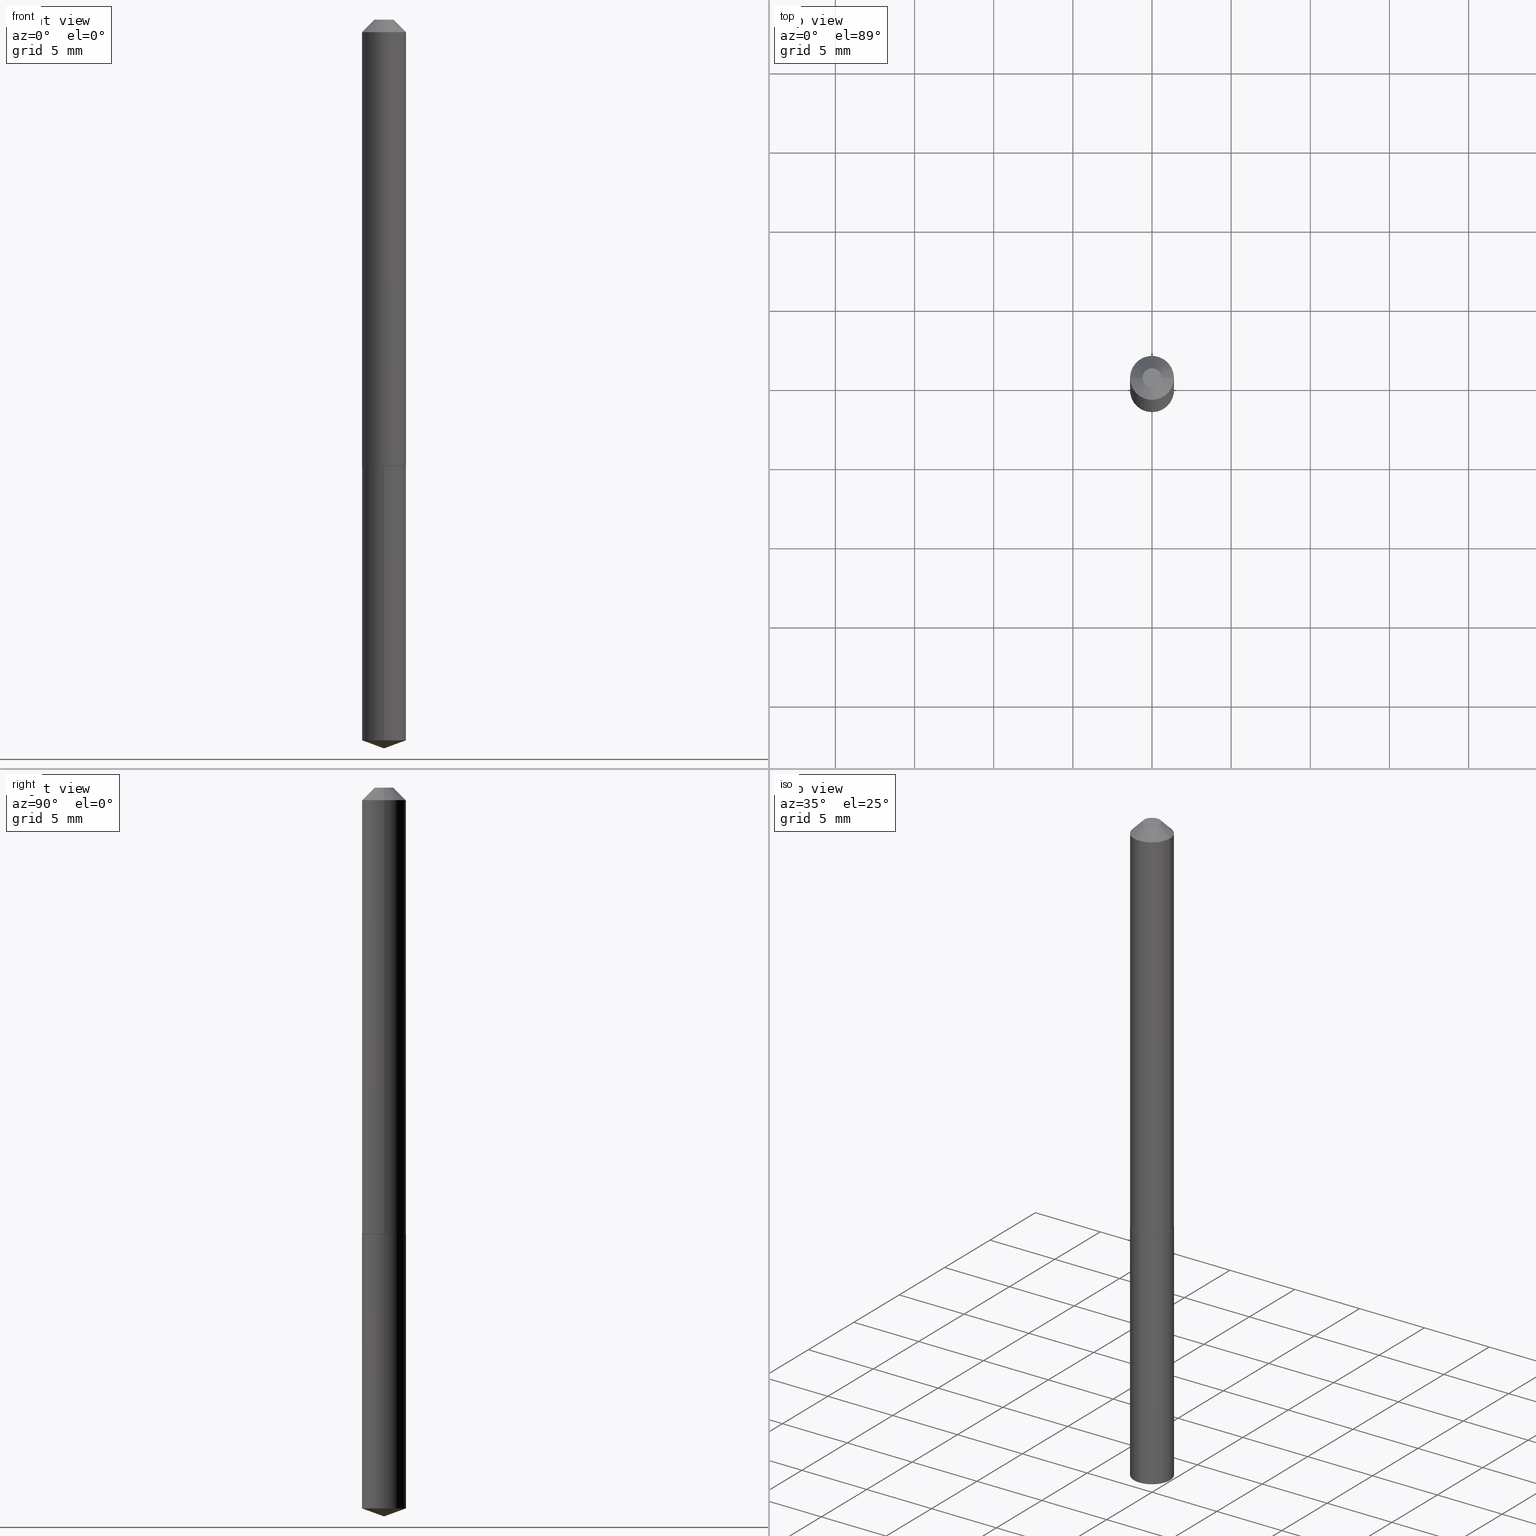
[diagram: canonical four-view strip — front | top / right | iso, engineering-drawing reading convention]
A machine part, canonical four-view strip (front | top / right | iso — engineering-drawing reading convention). The complete STEP part file that produces these views, byte-faithful:
ISO-10303-21;
HEADER;
FILE_DESCRIPTION (( 'STEP AP203' ),
    '1' );
FILE_NAME ('56107.STEP',
    '2024-04-22T20:14:20',
    ( '' ),
    ( '' ),
    'SwSTEP 2.0',
    'SolidWorks 2023',
    '' );
FILE_SCHEMA (( 'CONFIG_CONTROL_DESIGN' ));
ENDSEC;

DATA;
#1 = CLOSED_SHELL ( 'NONE', ( #71, #267, #113, #320, #117 ) ) ;
#3 = CARTESIAN_POINT ( 'NONE',  ( 2.713003093581790888E-29, -3.873449397312586735E-15, -1.109400000000000164 ) ) ;
#2 = CC_DESIGN_APPROVAL ( #110, ( #114 ) ) ;
#4 = ADVANCED_FACE ( 'NONE', ( #208 ), #100, .T. ) ;
#5 = DIRECTION ( 'NONE',  ( -0.7071067811863241959, 7.493145998869546367E-15, 0.7071067811867708386 ) ) ;
#6 = DIRECTION ( 'NONE',  ( -2.445468806185136597E-29, 3.491481338843145583E-15, 1.000000000000000000 ) ) ;
#7 = DATE_AND_TIME ( #281, #365 ) ;
#8 = PLANE ( 'NONE',  #119 ) ;
#9 = AXIS2_PLACEMENT_3D ( 'NONE', #3, #83, #357 ) ;
#10 = APPROVAL_PERSON_ORGANIZATION ( #307, #176, #368 ) ;
#11 = EDGE_CURVE ( 'NONE', #159, #144, #325, .T. ) ;
#12 = COORDINATED_UNIVERSAL_TIME_OFFSET ( 5, 0, .BEHIND. ) ;
#13 = PLANE ( 'NONE',  #108 ) ;
#14 = DIRECTION ( 'NONE',  ( -2.445468806185136597E-29, 3.491481338843145583E-15, 1.000000000000000000 ) ) ;
#15 = DATE_AND_TIME ( #160, #354 ) ;
#16 = CARTESIAN_POINT ( 'NONE',  ( -9.183059809027704400E-28, 1.311534802430125838E-13, 37.55757874015748143 ) ) ;
#17 = AXIS2_PLACEMENT_3D ( 'NONE', #331, #62, #303 ) ;
#18 = ORIENTED_EDGE ( 'NONE', *, *, #291, .T. ) ;
#19 = DATE_AND_TIME ( #339, #289 ) ;
#20 = DIRECTION ( 'NONE',  ( -2.445468806185136597E-29, 3.491481338843145583E-15, 1.000000000000000000 ) ) ;
#21 =( CONVERSION_BASED_UNIT ( 'INCH', #25 ) LENGTH_UNIT ( ) NAMED_UNIT ( #388 ) );
#22 = DIRECTION ( 'NONE',  ( -2.445468806185136597E-29, 3.491481338843145583E-15, 1.000000000000000000 ) ) ;
#23 = CIRCLE ( 'NONE', #150, 0.05469999999999999862 ) ;
#24 = EDGE_CURVE ( 'NONE', #344, #209, #187, .T. ) ;
#25 = LENGTH_MEASURE_WITH_UNIT ( LENGTH_MEASURE( 0.02539999999999999897 ), #106 );
#26 = EDGE_CURVE ( 'NONE', #159, #171, #270, .T. ) ;
#27 = EDGE_LOOP ( 'NONE', ( #115, #18, #389, #261 ) ) ;
#28 = AXIS2_PLACEMENT_3D ( 'NONE', #369, #377, #132 ) ;
#29 = VERTEX_POINT ( 'NONE', #300 ) ;
#30 = ORIENTED_EDGE ( 'NONE', *, *, #26, .T. ) ;
#31 = VERTEX_POINT ( 'NONE', #329 ) ;
#32 = ORIENTED_EDGE ( 'NONE', *, *, #273, .T. ) ;
#33 = ORIENTED_EDGE ( 'NONE', *, *, #34, .T. ) ;
#34 = EDGE_CURVE ( 'NONE', #39, #370, #23, .T. ) ;
#35 = DIRECTION ( 'NONE',  ( 2.445073400205194287E-29, -3.492047582711533107E-15, -1.000000000000000000 ) ) ;
#36 = CARTESIAN_POINT ( 'NONE',  ( 2.711780359178698087E-29, -3.871703656643164443E-15, -1.108899999999999997 ) ) ;
#37 = PERSON_AND_ORGANIZATION ( #124, #241 ) ;
#38 = CARTESIAN_POINT ( 'NONE',  ( 2.711780359178698087E-29, -3.871703656643164443E-15, -1.108899999999999997 ) ) ;
#39 = VERTEX_POINT ( 'NONE', #327 ) ;
#40 = PERSON_AND_ORGANIZATION ( #124, #241 ) ;
#41 = DIRECTION ( 'NONE',  ( -6.982962677686266711E-15, -1.000000000000000000, 3.475157955500704437E-15 ) ) ;
#42 = ORIENTED_EDGE ( 'NONE', *, *, #89, .F. ) ;
#43 = PERSON_AND_ORGANIZATION_ROLE ( 'classification_officer' ) ;
#44 = CC_DESIGN_PERSON_AND_ORGANIZATION_ASSIGNMENT ( #105, #211, ( #326 ) ) ;
#45 = FACE_OUTER_BOUND ( 'NONE', #88, .T. ) ;
#46 = CARTESIAN_POINT ( 'NONE',  ( 2.713003093581790888E-29, -3.873449397312585946E-15, -1.109400000000000164 ) ) ;
#47 = DESIGN_CONTEXT ( 'detailed design', #276, 'design' ) ;
#48 = CARTESIAN_POINT ( 'NONE',  ( 0.000000000000000000, 0.000000000000000000, 0.000000000000000000 ) ) ;
#49 = EDGE_CURVE ( 'NONE', #29, #203, #301, .T. ) ;
#50 = VECTOR ( 'NONE', #248, 39.37007874015748143 ) ;
#51 = CC_DESIGN_APPROVAL ( #252, ( #227 ) ) ;
#52 = DIRECTION ( 'NONE',  ( -6.561838499445207162E-15, -0.9396926207859079838, 0.3420201433256698231 ) ) ;
#53 = ORIENTED_EDGE ( 'NONE', *, *, #246, .F. ) ;
#54 = ORIENTED_EDGE ( 'NONE', *, *, #85, .T. ) ;
#55 = CYLINDRICAL_SURFACE ( 'NONE', #200, 0.05469999999999999862 ) ;
#56 = AXIS2_PLACEMENT_3D ( 'NONE', #161, #282, #250 ) ;
#57 = DIRECTION ( 'NONE',  ( -6.982962677686265922E-15, -1.000000000000000000, 4.994237648380736877E-15 ) ) ;
#58 = CARTESIAN_POINT ( 'NONE',  ( 2.713003093581790888E-29, -3.873449397312585946E-15, -1.109400000000000164 ) ) ;
#59 = EDGE_CURVE ( 'NONE', #171, #214, #243, .T. ) ;
#60 = EDGE_LOOP ( 'NONE', ( #266, #322, #309, #194 ) ) ;
#61 = CIRCLE ( 'NONE', #28, 0.05420000000000026880 ) ;
#62 = DIRECTION ( 'NONE',  ( 2.445468806185136597E-29, -3.491481338843145583E-15, -1.000000000000000000 ) ) ;
#63 = FACE_OUTER_BOUND ( 'NONE', #116, .T. ) ;
#64 = APPROVAL_DATE_TIME ( #19, #110 ) ;
#65 = CARTESIAN_POINT ( 'NONE',  ( -1.167985862904637270E-47, 1.667574263899819573E-33, 4.776122516674677910E-19 ) ) ;
#66 = DATE_TIME_ROLE ( 'classification_date' ) ;
#67 = FACE_OUTER_BOUND ( 'NONE', #143, .T. ) ;
#68 = AXIS2_PLACEMENT_3D ( 'NONE', #48, #318, #383 ) ;
#69 = ORIENTED_EDGE ( 'NONE', *, *, #263, .F. ) ;
#70 = LINE ( 'NONE', #191, #154 ) ;
#71 = ADVANCED_FACE ( 'NONE', ( #174 ), #55, .T. ) ;
#72 = CARTESIAN_POINT ( 'NONE',  ( -0.05470000000000000556, -1.601739347780230402E-15, -0.03125000000000020817 ) ) ;
#73 = ORIENTED_EDGE ( 'NONE', *, *, #59, .T. ) ;
#74 = DIRECTION ( 'NONE',  ( -2.445073400205194848E-29, 3.492047582711533107E-15, 1.000000000000000000 ) ) ;
#75 = VECTOR ( 'NONE', #52, 39.37007874015748143 ) ;
#76 = ADVANCED_FACE ( 'NONE', ( #87 ), #380, .T. ) ;
#77 =( NAMED_UNIT ( * ) PLANE_ANGLE_UNIT ( ) SI_UNIT ( $, .RADIAN. ) );
#78 = DIRECTION ( 'NONE',  ( 6.676917655467972073E-15, 0.9396926207859103153, 0.3420201433256632173 ) ) ;
#79 = DIRECTION ( 'NONE',  ( 1.000000000000000000, -6.982962677686266711E-15, 4.876421767504995250E-29 ) ) ;
#80 = CC_DESIGN_PERSON_AND_ORGANIZATION_ASSIGNMENT ( #93, #247, ( #227 ) ) ;
#81 = AXIS2_PLACEMENT_3D ( 'NONE', #367, #153, #255 ) ;
#82 = DIRECTION ( 'NONE',  ( -2.445468806185136877E-29, 3.491481338843145188E-15, 1.000000000000000000 ) ) ;
#83 = DIRECTION ( 'NONE',  ( -2.445468806185136597E-29, 3.491481338843145583E-15, 1.000000000000000000 ) ) ;
#84 = VECTOR ( 'NONE', #256, 39.37007874015748143 ) ;
#85 = EDGE_CURVE ( 'NONE', #209, #214, #264, .T. ) ;
#86 = ORIENTED_EDGE ( 'NONE', *, *, #156, .F. ) ;
#87 = FACE_OUTER_BOUND ( 'NONE', #27, .T. ) ;
#88 = EDGE_LOOP ( 'NONE', ( #173, #324, #148 ) ) ;
#89 = EDGE_CURVE ( 'NONE', #31, #142, #275, .T. ) ;
#90 = AXIS2_PLACEMENT_3D ( 'NONE', #304, #335, #372 ) ;
#92 = DIRECTION ( 'NONE',  ( -0.7071067811865452413, 2.468850131082233000E-15, -0.7071067811865497932 ) ) ;
#91 = LOCAL_TIME ( 16, 14, 20.00000000000000000, #12 ) ;
#93 = PERSON_AND_ORGANIZATION ( #124, #241 ) ;
#94 = DIRECTION ( 'NONE',  ( 6.982962677686265922E-15, 1.000000000000000000, -3.492047582711533107E-15 ) ) ;
#95 = APPROVAL_DATE_TIME ( #131, #176 ) ;
#96 = CARTESIAN_POINT ( 'NONE',  ( 3.886668764608184751E-16, 0.05469999999999372586, -1.792590828185639307 ) ) ;
#97 = EDGE_LOOP ( 'NONE', ( #290, #265, #384, #283 ) ) ;
#98 = APPLICATION_PROTOCOL_DEFINITION ( 'international standard', 'config_control_design', 1994, #292 ) ;
#99 = CARTESIAN_POINT ( 'NONE',  ( 2.713003093581790888E-29, -3.873449397312585946E-15, -1.109400000000000164 ) ) ;
#100 = CONICAL_SURFACE ( 'NONE', #139, 0.05470000000000000556, 0.7853981633974450594 ) ;
#101 = EDGE_CURVE ( 'NONE', #370, #39, #257, .T. ) ;
#102 = CARTESIAN_POINT ( 'NONE',  ( 0.000000000000000000, 0.000000000000000000, 0.000000000000000000 ) ) ;
#103 = CARTESIAN_POINT ( 'NONE',  ( 0.05470000000000000556, -4.910768503082878866E-16, -0.03125000000000020817 ) ) ;
#104 = ORIENTED_EDGE ( 'NONE', *, *, #179, .T. ) ;
#105 = PERSON_AND_ORGANIZATION ( #124, #241 ) ;
#106 =( LENGTH_UNIT ( ) NAMED_UNIT ( * ) SI_UNIT ( $, .METRE. ) );
#107 = DIRECTION ( 'NONE',  ( -6.982962677686266711E-15, -1.000000000000000000, 3.475157955500704437E-15 ) ) ;
#108 = AXIS2_PLACEMENT_3D ( 'NONE', #65, #253, #185 ) ;
#109 = FACE_OUTER_BOUND ( 'NONE', #297, .T. ) ;
#110 = APPROVAL ( #215, 'UNSPECIFIED' ) ;
#111 = DIRECTION ( 'NONE',  ( -2.445073400205194848E-29, 3.492047582711533107E-15, 1.000000000000000000 ) ) ;
#112 = ORIENTED_EDGE ( 'NONE', *, *, #34, .F. ) ;
#113 = ADVANCED_FACE ( 'NONE', ( #67 ), #288, .T. ) ;
#114 = SECURITY_CLASSIFICATION ( '', '', #334 ) ;
#115 = ORIENTED_EDGE ( 'NONE', *, *, #24, .F. ) ;
#116 = EDGE_LOOP ( 'NONE', ( #201, #237, #379, #387 ) ) ;
#117 = ADVANCED_FACE ( 'NONE', ( #279 ), #8, .F. ) ;
#118 = CARTESIAN_POINT ( 'NONE',  ( -0.05470000000000013046, -3.483036780182388665E-15, -1.108899999999999997 ) ) ;
#119 = AXIS2_PLACEMENT_3D ( 'NONE', #99, #35, #94 ) ;
#120 = APPROVAL_PERSON_ORGANIZATION ( #278, #252, #249 ) ;
#121 = DIRECTION ( 'NONE',  ( -2.445073400205194848E-29, 3.492047582711533107E-15, 1.000000000000000000 ) ) ;
#122 = ORIENTED_EDGE ( 'NONE', *, *, #291, .F. ) ;
#123 = LINE ( 'NONE', #363, #332 ) ;
#124 = PERSON ( 'UNSPECIFIED', 'UNSPECIFIED', 'UNSPECIFIED', ('UNSPECIFIED'), ('UNSPECIFIED'), ('UNSPECIFIED') ) ;
#125 = APPROVAL_DATE_TIME ( #7, #252 ) ;
#126 = APPROVAL_PERSON_ORGANIZATION ( #157, #110, #133 ) ;
#127 = CARTESIAN_POINT ( 'NONE',  ( 3.886668764608018597E-16, 0.05469999999999612672, -1.109400000000000164 ) ) ;
#128 = CC_DESIGN_PERSON_AND_ORGANIZATION_ASSIGNMENT ( #366, #376, ( #326 ) ) ;
#129 = DATE_AND_TIME ( #251, #91 ) ;
#130 = CARTESIAN_POINT ( 'NONE',  ( 4.431695537871916310E-29, -6.329336243664654422E-15, -1.812500000000000222 ) ) ;
#131 = DATE_AND_TIME ( #371, #306 ) ;
#132 = DIRECTION ( 'NONE',  ( 1.000000000000000000, -6.982962677686269866E-15, 0.000000000000000000 ) ) ;
#133 = APPROVAL_ROLE ( '' ) ;
#134 = DIRECTION ( 'NONE',  ( -2.445073400205194848E-29, 3.492047582711533107E-15, 1.000000000000000000 ) ) ;
#135 = AXIS2_PLACEMENT_3D ( 'NONE', #102, #336, #162 ) ;
#136 = APPROVAL_STATUS ( 'not_yet_approved' ) ;
#137 = EDGE_CURVE ( 'NONE', #171, #31, #216, .T. ) ;
#138 = CARTESIAN_POINT ( 'NONE',  ( 2.711780359178698087E-29, -3.871703656643164443E-15, -1.108899999999999997 ) ) ;
#139 = AXIS2_PLACEMENT_3D ( 'NONE', #239, #149, #175 ) ;
#140 = UNCERTAINTY_MEASURE_WITH_UNIT (LENGTH_MEASURE( 1.000000000000000082E-05 ), #21, 'distance_accuracy_value', 'NONE');
#141 = CARTESIAN_POINT ( 'NONE',  ( 0.05470000000000000556, -4.843780323169518806E-16, -0.03125000000000020817 ) ) ;
#142 = VERTEX_POINT ( 'NONE', #103 ) ;
#143 = EDGE_LOOP ( 'NONE', ( #236, #32, #86 ) ) ;
#144 = VERTEX_POINT ( 'NONE', #183 ) ;
#145 = AXIS2_PLACEMENT_3D ( 'NONE', #272, #6, #244 ) ;
#146 = ORIENTED_EDGE ( 'NONE', *, *, #199, .T. ) ;
#147 = EDGE_CURVE ( 'NONE', #203, #370, #343, .T. ) ;
#148 = ORIENTED_EDGE ( 'NONE', *, *, #49, .F. ) ;
#149 = DIRECTION ( 'NONE',  ( 2.445468806185136597E-29, -3.491481338843145583E-15, -1.000000000000000000 ) ) ;
#150 = AXIS2_PLACEMENT_3D ( 'NONE', #58, #242, #296 ) ;
#151 = DIRECTION ( 'NONE',  ( 1.000000000000000000, -6.982962677686266711E-15, 4.876421767504995250E-29 ) ) ;
#152 = CYLINDRICAL_SURFACE ( 'NONE', #145, 0.05470000000000006801 ) ;
#153 = DIRECTION ( 'NONE',  ( -2.445073400205194848E-29, 3.492047582711533107E-15, 1.000000000000000000 ) ) ;
#154 = VECTOR ( 'NONE', #311, 39.37007874015748143 ) ;
#155 = DIRECTION ( 'NONE',  ( 1.000000000000000000, -6.982962677686269866E-15, 0.000000000000000000 ) ) ;
#156 = EDGE_CURVE ( 'NONE', #203, #29, #373, .T. ) ;
#157 = PERSON_AND_ORGANIZATION ( #124, #241 ) ;
#158 = CARTESIAN_POINT ( 'NONE',  ( 2.713003093581790888E-29, -3.873449397312586735E-15, -1.109400000000000164 ) ) ;
#159 = VERTEX_POINT ( 'NONE', #280 ) ;
#160 = CALENDAR_DATE ( 2024, 22, 4 ) ;
#161 = CARTESIAN_POINT ( 'NONE',  ( 2.711780359178698087E-29, -3.871703656643164443E-15, -1.108899999999999997 ) ) ;
#162 = DIRECTION ( 'NONE',  ( 1.000000000000000000, 0.000000000000000000, 0.000000000000000000 ) ) ;
#163 = ADVANCED_FACE ( 'NONE', ( #212 ), #13, .F. ) ;
#164 = FACE_OUTER_BOUND ( 'NONE', #60, .T. ) ;
#165 = CONICAL_SURFACE ( 'NONE', #230, 0.05470000000000013046, 0.7853981633971325316 ) ;
#166 = PERSON_AND_ORGANIZATION_ROLE ( 'design_owner' ) ;
#167 = CYLINDRICAL_SURFACE ( 'NONE', #68, 0.05470000000000006801 ) ;
#168 = DIRECTION ( 'NONE',  ( 1.000000000000000000, -6.982962677686269866E-15, 0.000000000000000000 ) ) ;
#169 = CIRCLE ( 'NONE', #358, 0.02344999999999999862 ) ;
#170 =( NAMED_UNIT ( * ) SI_UNIT ( $, .STERADIAN. ) SOLID_ANGLE_UNIT ( ) );
#171 = VERTEX_POINT ( 'NONE', #305 ) ;
#172 = ADVANCED_FACE ( 'NONE', ( #63 ), #178, .T. ) ;
#173 = ORIENTED_EDGE ( 'NONE', *, *, #273, .F. ) ;
#174 = FACE_OUTER_BOUND ( 'NONE', #192, .T. ) ;
#175 = DIRECTION ( 'NONE',  ( -1.000000000000000000, 6.982962677686266711E-15, 0.000000000000000000 ) ) ;
#176 = APPROVAL ( #221, 'UNSPECIFIED' ) ;
#177 = ORIENTED_EDGE ( 'NONE', *, *, #179, .F. ) ;
#178 = CONICAL_SURFACE ( 'NONE', #56, 0.05470000000000013046, 0.7853981633971325316 ) ;
#179 = EDGE_CURVE ( 'NONE', #144, #159, #61, .T. ) ;
#180 = CC_DESIGN_SECURITY_CLASSIFICATION ( #114, ( #326 ) ) ;
#181 = CARTESIAN_POINT ( 'NONE',  ( 2.713003093581790888E-29, -3.873449397312585946E-15, -1.109400000000000164 ) ) ;
#182 = CC_DESIGN_DATE_AND_TIME_ASSIGNMENT ( #15, #66, ( #114 ) ) ;
#183 = CARTESIAN_POINT ( 'NONE',  ( 0.05420000000000026880, -4.251925974443183697E-15, -1.109400000000000164 ) ) ;
#184 = SHAPE_DEFINITION_REPRESENTATION ( #390, #274 ) ;
#185 = DIRECTION ( 'NONE',  ( -1.000000000000000000, 6.982962677686265922E-15, -4.876176775795935793E-29 ) ) ;
#186 = DATE_TIME_ROLE ( 'creation_date' ) ;
#187 = CIRCLE ( 'NONE', #254, 0.02344999999999999862 ) ;
#188 = VECTOR ( 'NONE', #78, 39.37007874015748854 ) ;
#189 = DIRECTION ( 'NONE',  ( -2.445468806185136597E-29, 3.491481338843145583E-15, 1.000000000000000000 ) ) ;
#190 = ORIENTED_EDGE ( 'NONE', *, *, #345, .T. ) ;
#191 = CARTESIAN_POINT ( 'NONE',  ( 0.05470000000000013046, -4.253671715112603623E-15, -1.108899999999999997 ) ) ;
#192 = EDGE_LOOP ( 'NONE', ( #323, #223, #112, #53 ) ) ;
#193 = DIRECTION ( 'NONE',  ( -2.438088387897960049E-29, 3.491481338843145188E-15, 1.000000000000000000 ) ) ;
#194 = ORIENTED_EDGE ( 'NONE', *, *, #298, .F. ) ;
#195 = CONICAL_SURFACE ( 'NONE', #245, 108.1684023407339481, 1.221730476396033049 ) ;
#196 = CARTESIAN_POINT ( 'NONE',  ( 7.642090019328602662E-31, -1.091087918388490267E-16, -0.03125000000000020817 ) ) ;
#197 = CARTESIAN_POINT ( 'NONE',  ( 4.432580557780543082E-29, -6.328079861769475848E-15, -1.812500000000000222 ) ) ;
#198 = DIRECTION ( 'NONE',  ( -6.982962677686265922E-15, -1.000000000000000000, 2.497118824190368439E-15 ) ) ;
#199 = EDGE_CURVE ( 'NONE', #31, #171, #316, .T. ) ;
#201 = ORIENTED_EDGE ( 'NONE', *, *, #26, .F. ) ;
#200 = AXIS2_PLACEMENT_3D ( 'NONE', #181, #121, #361 ) ;
#202 = CC_DESIGN_PERSON_AND_ORGANIZATION_ASSIGNMENT ( #37, #43, ( #114 ) ) ;
#203 = VERTEX_POINT ( 'NONE', #96 ) ;
#204 = DIRECTION ( 'NONE',  ( -2.445468806185136597E-29, 3.491481338843145583E-15, 1.000000000000000000 ) ) ;
#205 = AXIS2_PLACEMENT_3D ( 'NONE', #158, #193, #218 ) ;
#206 =( GEOMETRIC_REPRESENTATION_CONTEXT ( 3 ) GLOBAL_UNCERTAINTY_ASSIGNED_CONTEXT ( ( #140 ) ) GLOBAL_UNIT_ASSIGNED_CONTEXT ( ( #21, #77, #170 ) ) REPRESENTATION_CONTEXT ( 'NONE', 'WORKASPACE' ) );
#207 = VERTEX_POINT ( 'NONE', #130 ) ;
#208 = FACE_OUTER_BOUND ( 'NONE', #355, .T. ) ;
#209 = VERTEX_POINT ( 'NONE', #210 ) ;
#210 = CARTESIAN_POINT ( 'NONE',  ( -0.02344999999999999862, 2.183048707111663922E-16, 9.552245033335997570E-19 ) ) ;
#211 = PERSON_AND_ORGANIZATION_ROLE ( 'design_supplier' ) ;
#212 = FACE_OUTER_BOUND ( 'NONE', #352, .T. ) ;
#213 = FACE_OUTER_BOUND ( 'NONE', #238, .T. ) ;
#214 = VERTEX_POINT ( 'NONE', #72 ) ;
#215 = APPROVAL_STATUS ( 'not_yet_approved' ) ;
#216 = CIRCLE ( 'NONE', #269, 0.05470000000000013046 ) ;
#217 = CC_DESIGN_APPROVAL ( #176, ( #326 ) ) ;
#218 = DIRECTION ( 'NONE',  ( 1.000000000000000000, -6.982962677686265922E-15, 4.876176775795935793E-29 ) ) ;
#219 = ADVANCED_FACE ( 'NONE', ( #213 ), #308, .F. ) ;
#220 = EDGE_CURVE ( 'NONE', #144, #31, #70, .T. ) ;
#221 = APPROVAL_STATUS ( 'not_yet_approved' ) ;
#222 = DIRECTION ( 'NONE',  ( 1.000000000000000000, -6.982962677686269866E-15, 0.000000000000000000 ) ) ;
#223 = ORIENTED_EDGE ( 'NONE', *, *, #147, .T. ) ;
#224 = COORDINATED_UNIVERSAL_TIME_OFFSET ( 5, 0, .BEHIND. ) ;
#225 = LINE ( 'NONE', #141, #84 ) ;
#226 = MANIFOLD_SOLID_BREP ( 'Body-Move/Copy2[1]', #1 ) ;
#227 = PRODUCT_DEFINITION ( 'UNKNOWN', '', #326, #47 ) ;
#228 = AXIS2_PLACEMENT_3D ( 'NONE', #196, #232, #286 ) ;
#229 = FACE_OUTER_BOUND ( 'NONE', #97, .T. ) ;
#230 = AXIS2_PLACEMENT_3D ( 'NONE', #138, #319, #168 ) ;
#231 = ADVANCED_FACE ( 'NONE', ( #314 ), #152, .T. ) ;
#232 = DIRECTION ( 'NONE',  ( -2.445468806185136597E-29, 3.491481338843145583E-15, 1.000000000000000000 ) ) ;
#233 = CARTESIAN_POINT ( 'NONE',  ( 0.02344999999999999862, -3.226283551823471496E-16, 9.552245033366354078E-19 ) ) ;
#234 = ORIENTED_EDGE ( 'NONE', *, *, #11, .F. ) ;
#236 = ORIENTED_EDGE ( 'NONE', *, *, #362, .F. ) ;
#235 = AXIS2_PLACEMENT_3D ( 'NONE', #16, #340, #41 ) ;
#237 = ORIENTED_EDGE ( 'NONE', *, *, #11, .T. ) ;
#238 = EDGE_LOOP ( 'NONE', ( #177, #234 ) ) ;
#239 = CARTESIAN_POINT ( 'NONE',  ( 7.642090019328602662E-31, -1.091087918388490267E-16, -0.03125000000000020817 ) ) ;
#240 = VECTOR ( 'NONE', #82, 39.37007874015748143 ) ;
#241 = ORGANIZATION ( 'UNSPECIFIED', 'UNSPECIFIED', '' ) ;
#242 = DIRECTION ( 'NONE',  ( -2.445073400205194848E-29, 3.492047582711533107E-15, 1.000000000000000000 ) ) ;
#243 = LINE ( 'NONE', #299, #240 ) ;
#244 = DIRECTION ( 'NONE',  ( 1.000000000000000000, -6.982962677686266711E-15, 4.876176775795936353E-29 ) ) ;
#245 = AXIS2_PLACEMENT_3D ( 'NONE', #317, #74, #107 ) ;
#246 = EDGE_CURVE ( 'NONE', #29, #39, #123, .T. ) ;
#247 = PERSON_AND_ORGANIZATION_ROLE ( 'creator' ) ;
#248 = DIRECTION ( 'NONE',  ( -2.445468806185136877E-29, 3.491481338843145188E-15, 1.000000000000000000 ) ) ;
#249 = APPROVAL_ROLE ( '' ) ;
#250 = DIRECTION ( 'NONE',  ( 1.000000000000000000, -6.982962677686269866E-15, 0.000000000000000000 ) ) ;
#251 = CALENDAR_DATE ( 2024, 22, 4 ) ;
#252 = APPROVAL ( #136, 'UNSPECIFIED' ) ;
#253 = DIRECTION ( 'NONE',  ( 2.438088387897960049E-29, -3.491481338843145188E-15, -1.000000000000000000 ) ) ;
#254 = AXIS2_PLACEMENT_3D ( 'NONE', #360, #204, #151 ) ;
#255 = DIRECTION ( 'NONE',  ( -6.982962677686265922E-15, -1.000000000000000000, 4.994237648380736877E-15 ) ) ;
#256 = DIRECTION ( 'NONE',  ( 0.7071067811865452413, -7.319954787623248157E-15, -0.7071067811865497932 ) ) ;
#257 = CIRCLE ( 'NONE', #90, 0.05469999999999999862 ) ;
#258 = CARTESIAN_POINT ( 'NONE',  ( 7.642090019328602662E-31, -1.091087918388490267E-16, -0.03125000000000020817 ) ) ;
#259 = AXIS2_PLACEMENT_3D ( 'NONE', #46, #111, #198 ) ;
#260 = CARTESIAN_POINT ( 'NONE',  ( 3.886668764608186723E-16, 0.05469999999999611284, -1.109400000000000164 ) ) ;
#261 = ORIENTED_EDGE ( 'NONE', *, *, #85, .F. ) ;
#262 = CC_DESIGN_DATE_AND_TIME_ASSIGNMENT ( #129, #186, ( #227 ) ) ;
#263 = EDGE_CURVE ( 'NONE', #142, #214, #364, .T. ) ;
#264 = LINE ( 'NONE', #386, #353 ) ;
#265 = ORIENTED_EDGE ( 'NONE', *, *, #156, .T. ) ;
#266 = ORIENTED_EDGE ( 'NONE', *, *, #59, .F. ) ;
#267 = ADVANCED_FACE ( 'NONE', ( #45 ), #195, .T. ) ;
#268 = CARTESIAN_POINT ( 'NONE',  ( 4.383454814842654207E-29, -6.259184277408935963E-15, -1.792590828185639085 ) ) ;
#269 = AXIS2_PLACEMENT_3D ( 'NONE', #38, #189, #222 ) ;
#270 = LINE ( 'NONE', #118, #338 ) ;
#271 = CC_DESIGN_PERSON_AND_ORGANIZATION_ASSIGNMENT ( #40, #166, ( #328 ) ) ;
#272 = CARTESIAN_POINT ( 'NONE',  ( 0.000000000000000000, 0.000000000000000000, 0.000000000000000000 ) ) ;
#273 = EDGE_CURVE ( 'NONE', #207, #29, #350, .T. ) ;
#274 = ADVANCED_BREP_SHAPE_REPRESENTATION ( '56107', ( #226, #347, #135 ), #206 ) ;
#275 = LINE ( 'NONE', #337, #50 ) ;
#276 = APPLICATION_CONTEXT ( 'configuration controlled 3d designs of mechanical parts and assemblies' ) ;
#277 = VECTOR ( 'NONE', #134, 39.37007874015748143 ) ;
#278 = PERSON_AND_ORGANIZATION ( #124, #241 ) ;
#279 = FACE_OUTER_BOUND ( 'NONE', #330, .T. ) ;
#280 = CARTESIAN_POINT ( 'NONE',  ( -0.05420000000000026880, -3.485686007356499471E-15, -1.109400000000000164 ) ) ;
#281 = CALENDAR_DATE ( 2024, 22, 4 ) ;
#282 = DIRECTION ( 'NONE',  ( -2.445468806185136597E-29, 3.491481338843145583E-15, 1.000000000000000000 ) ) ;
#283 = ORIENTED_EDGE ( 'NONE', *, *, #101, .F. ) ;
#284 = COORDINATED_UNIVERSAL_TIME_OFFSET ( 5, 0, .BEHIND. ) ;
#285 = AXIS2_PLACEMENT_3D ( 'NONE', #36, #14, #155 ) ;
#286 = DIRECTION ( 'NONE',  ( 1.000000000000000000, -6.982962677686266711E-15, 0.000000000000000000 ) ) ;
#287 = CYLINDRICAL_SURFACE ( 'NONE', #259, 0.05469999999999999862 ) ;
#288 = CONICAL_SURFACE ( 'NONE', #235, 108.1684023407339481, 1.221730476396033049 ) ;
#289 = LOCAL_TIME ( 16, 14, 20.00000000000000000, #342 ) ;
#290 = ORIENTED_EDGE ( 'NONE', *, *, #147, .F. ) ;
#291 = EDGE_CURVE ( 'NONE', #344, #142, #225, .T. ) ;
#292 = APPLICATION_CONTEXT ( 'configuration controlled 3d designs of mechanical parts and assemblies' ) ;
#293 = ORIENTED_EDGE ( 'NONE', *, *, #220, .F. ) ;
#294 = ORIENTED_EDGE ( 'NONE', *, *, #345, .F. ) ;
#295 = CIRCLE ( 'NONE', #375, 0.05470000000000000556 ) ;
#296 = DIRECTION ( 'NONE',  ( -6.982962677686265922E-15, -1.000000000000000000, 2.497118824190368439E-15 ) ) ;
#297 = EDGE_LOOP ( 'NONE', ( #104, #30, #385, #293 ) ) ;
#298 = EDGE_CURVE ( 'NONE', #214, #142, #295, .T. ) ;
#299 = CARTESIAN_POINT ( 'NONE',  ( -0.05470000000000006801, 3.886668764607752849E-16, -2.690657494369436511E-30 ) ) ;
#300 = CARTESIAN_POINT ( 'NONE',  ( -3.819680584693948069E-16, -0.05470000000000622975, -1.792590828185638641 ) ) ;
#301 = CIRCLE ( 'NONE', #321, 0.05469999999999999862 ) ;
#302 = PRODUCT_RELATED_PRODUCT_CATEGORY ( 'detail', '', ( #328 ) ) ;
#303 = DIRECTION ( 'NONE',  ( -1.000000000000000000, 6.982962677686266711E-15, 0.000000000000000000 ) ) ;
#304 = CARTESIAN_POINT ( 'NONE',  ( 2.713003093581790888E-29, -3.873449397312585946E-15, -1.109400000000000164 ) ) ;
#305 = CARTESIAN_POINT ( 'NONE',  ( -0.05470000000000013046, -3.483036780182388665E-15, -1.108899999999999997 ) ) ;
#306 = LOCAL_TIME ( 16, 14, 20.00000000000000000, #224 ) ;
#307 = PERSON_AND_ORGANIZATION ( #124, #241 ) ;
#308 = PLANE ( 'NONE',  #205 ) ;
#309 = ORIENTED_EDGE ( 'NONE', *, *, #89, .T. ) ;
#310 = COORDINATED_UNIVERSAL_TIME_OFFSET ( 5, 0, .BEHIND. ) ;
#311 = DIRECTION ( 'NONE',  ( 0.7071067811863241959, -2.468850131079917299E-15, 0.7071067811867708386 ) ) ;
#312 = EDGE_LOOP ( 'NONE', ( #146, #73, #69, #42 ) ) ;
#313 = MECHANICAL_CONTEXT ( 'NONE', #292, 'mechanical' ) ;
#314 = FACE_OUTER_BOUND ( 'NONE', #312, .T. ) ;
#315 = APPLICATION_PROTOCOL_DEFINITION ( 'international standard', 'config_control_design', 1994, #276 ) ;
#316 = CIRCLE ( 'NONE', #285, 0.05470000000000013046 ) ;
#317 = CARTESIAN_POINT ( 'NONE',  ( -9.183059809027704400E-28, 1.311534802430125838E-13, 37.55757874015748143 ) ) ;
#318 = DIRECTION ( 'NONE',  ( -2.445468806185136597E-29, 3.491481338843145583E-15, 1.000000000000000000 ) ) ;
#319 = DIRECTION ( 'NONE',  ( -2.445468806185136597E-29, 3.491481338843145583E-15, 1.000000000000000000 ) ) ;
#320 = ADVANCED_FACE ( 'NONE', ( #229 ), #287, .T. ) ;
#321 = AXIS2_PLACEMENT_3D ( 'NONE', #268, #356, #57 ) ;
#322 = ORIENTED_EDGE ( 'NONE', *, *, #137, .T. ) ;
#323 = ORIENTED_EDGE ( 'NONE', *, *, #49, .T. ) ;
#324 = ORIENTED_EDGE ( 'NONE', *, *, #362, .T. ) ;
#325 = CIRCLE ( 'NONE', #9, 0.05420000000000026880 ) ;
#327 = CARTESIAN_POINT ( 'NONE',  ( -3.819680584694116195E-16, -0.05470000000000387747, -1.109399999999999942 ) ) ;
#326 = PRODUCT_DEFINITION_FORMATION_WITH_SPECIFIED_SOURCE ( 'ANY', '', #328, .NOT_KNOWN. ) ;
#328 = PRODUCT ( '56107', '56107', '', ( #313 ) ) ;
#329 = CARTESIAN_POINT ( 'NONE',  ( 0.05470000000000013046, -4.253671715112603623E-15, -1.108899999999999997 ) ) ;
#330 = EDGE_LOOP ( 'NONE', ( #33, #341 ) ) ;
#331 = CARTESIAN_POINT ( 'NONE',  ( 7.642090019328602662E-31, -1.091087918388490267E-16, -0.03125000000000020817 ) ) ;
#332 = VECTOR ( 'NONE', #333, 39.37007874015748143 ) ;
#333 = DIRECTION ( 'NONE',  ( -2.445073400205194848E-29, 3.492047582711533107E-15, 1.000000000000000000 ) ) ;
#334 = SECURITY_CLASSIFICATION_LEVEL ( 'unclassified' ) ;
#335 = DIRECTION ( 'NONE',  ( -2.445073400205194848E-29, 3.492047582711533107E-15, 1.000000000000000000 ) ) ;
#336 = DIRECTION ( 'NONE',  ( 0.000000000000000000, 0.000000000000000000, 1.000000000000000000 ) ) ;
#337 = CARTESIAN_POINT ( 'NONE',  ( 0.05470000000000006801, -3.819680584694392790E-16, 2.667268696360380458E-30 ) ) ;
#338 = VECTOR ( 'NONE', #5, 39.37007874015748143 ) ;
#339 = CALENDAR_DATE ( 2024, 22, 4 ) ;
#340 = DIRECTION ( 'NONE',  ( -2.445073400205194848E-29, 3.492047582711533107E-15, 1.000000000000000000 ) ) ;
#341 = ORIENTED_EDGE ( 'NONE', *, *, #101, .T. ) ;
#342 = COORDINATED_UNIVERSAL_TIME_OFFSET ( 5, 0, .BEHIND. ) ;
#343 = LINE ( 'NONE', #127, #277 ) ;
#344 = VERTEX_POINT ( 'NONE', #233 ) ;
#345 = EDGE_CURVE ( 'NONE', #209, #344, #169, .T. ) ;
#346 = DIRECTION ( 'NONE',  ( 1.000000000000000000, -6.982962677686266711E-15, 0.000000000000000000 ) ) ;
#347 = MANIFOLD_SOLID_BREP ( 'Body-Move/Copy2[2]', #348 ) ;
#348 = CLOSED_SHELL ( 'NONE', ( #76, #231, #378, #219, #172, #382, #4, #163 ) ) ;
#349 = CARTESIAN_POINT ( 'NONE',  ( 4.431695537871916310E-29, -6.329336243664654422E-15, -1.812500000000000222 ) ) ;
#350 = LINE ( 'NONE', #349, #75 ) ;
#351 = LINE ( 'NONE', #197, #188 ) ;
#352 = EDGE_LOOP ( 'NONE', ( #190, #374 ) ) ;
#353 = VECTOR ( 'NONE', #92, 39.37007874015748143 ) ;
#354 = LOCAL_TIME ( 16, 14, 20.00000000000000000, #284 ) ;
#355 = EDGE_LOOP ( 'NONE', ( #122, #294, #54, #359 ) ) ;
#356 = DIRECTION ( 'NONE',  ( -2.445073400205194848E-29, 3.492047582711533107E-15, 1.000000000000000000 ) ) ;
#357 = DIRECTION ( 'NONE',  ( 1.000000000000000000, -6.982962677686269866E-15, 0.000000000000000000 ) ) ;
#359 = ORIENTED_EDGE ( 'NONE', *, *, #298, .T. ) ;
#358 = AXIS2_PLACEMENT_3D ( 'NONE', #381, #22, #79 ) ;
#360 = CARTESIAN_POINT ( 'NONE',  ( -2.335971725809274539E-47, 3.335148527799639146E-33, 9.552245033349355820E-19 ) ) ;
#361 = DIRECTION ( 'NONE',  ( -6.982962677686265922E-15, -1.000000000000000000, 2.497118824190368439E-15 ) ) ;
#362 = EDGE_CURVE ( 'NONE', #207, #203, #351, .T. ) ;
#363 = CARTESIAN_POINT ( 'NONE',  ( -3.819680584694116195E-16, -0.05470000000000387747, -1.109399999999999942 ) ) ;
#364 = CIRCLE ( 'NONE', #228, 0.05470000000000000556 ) ;
#365 = LOCAL_TIME ( 16, 14, 20.00000000000000000, #310 ) ;
#366 = PERSON_AND_ORGANIZATION ( #124, #241 ) ;
#367 = CARTESIAN_POINT ( 'NONE',  ( 4.383454814842654207E-29, -6.259184277408935963E-15, -1.792590828185639085 ) ) ;
#368 = APPROVAL_ROLE ( '' ) ;
#369 = CARTESIAN_POINT ( 'NONE',  ( 2.713003093581790888E-29, -3.873449397312586735E-15, -1.109400000000000164 ) ) ;
#370 = VERTEX_POINT ( 'NONE', #260 ) ;
#371 = CALENDAR_DATE ( 2024, 22, 4 ) ;
#372 = DIRECTION ( 'NONE',  ( -6.982962677686265922E-15, -1.000000000000000000, 2.497118824190368439E-15 ) ) ;
#373 = CIRCLE ( 'NONE', #81, 0.05469999999999999862 ) ;
#374 = ORIENTED_EDGE ( 'NONE', *, *, #24, .T. ) ;
#375 = AXIS2_PLACEMENT_3D ( 'NONE', #258, #20, #346 ) ;
#376 = PERSON_AND_ORGANIZATION_ROLE ( 'creator' ) ;
#377 = DIRECTION ( 'NONE',  ( -2.445468806185136597E-29, 3.491481338843145583E-15, 1.000000000000000000 ) ) ;
#378 = ADVANCED_FACE ( 'NONE', ( #109 ), #165, .T. ) ;
#379 = ORIENTED_EDGE ( 'NONE', *, *, #220, .T. ) ;
#380 = CONICAL_SURFACE ( 'NONE', #17, 0.05470000000000000556, 0.7853981633974450594 ) ;
#381 = CARTESIAN_POINT ( 'NONE',  ( -2.335971725809274539E-47, 3.335148527799639146E-33, 9.552245033349355820E-19 ) ) ;
#382 = ADVANCED_FACE ( 'NONE', ( #164 ), #167, .T. ) ;
#383 = DIRECTION ( 'NONE',  ( 1.000000000000000000, -6.982962677686266711E-15, 4.876176775795936353E-29 ) ) ;
#384 = ORIENTED_EDGE ( 'NONE', *, *, #246, .T. ) ;
#385 = ORIENTED_EDGE ( 'NONE', *, *, #199, .F. ) ;
#386 = CARTESIAN_POINT ( 'NONE',  ( -0.05470000000000000556, 2.728592666305898332E-16, -0.03125000000000020817 ) ) ;
#387 = ORIENTED_EDGE ( 'NONE', *, *, #137, .F. ) ;
#388 = DIMENSIONAL_EXPONENTS ( 1.000000000000000000, 0.000000000000000000, 0.000000000000000000, 0.000000000000000000, 0.000000000000000000, 0.000000000000000000, 0.000000000000000000 ) ;
#389 = ORIENTED_EDGE ( 'NONE', *, *, #263, .T. ) ;
#390 = PRODUCT_DEFINITION_SHAPE ( 'NONE', 'NONE',  #227 ) ;
ENDSEC;
END-ISO-10303-21;
